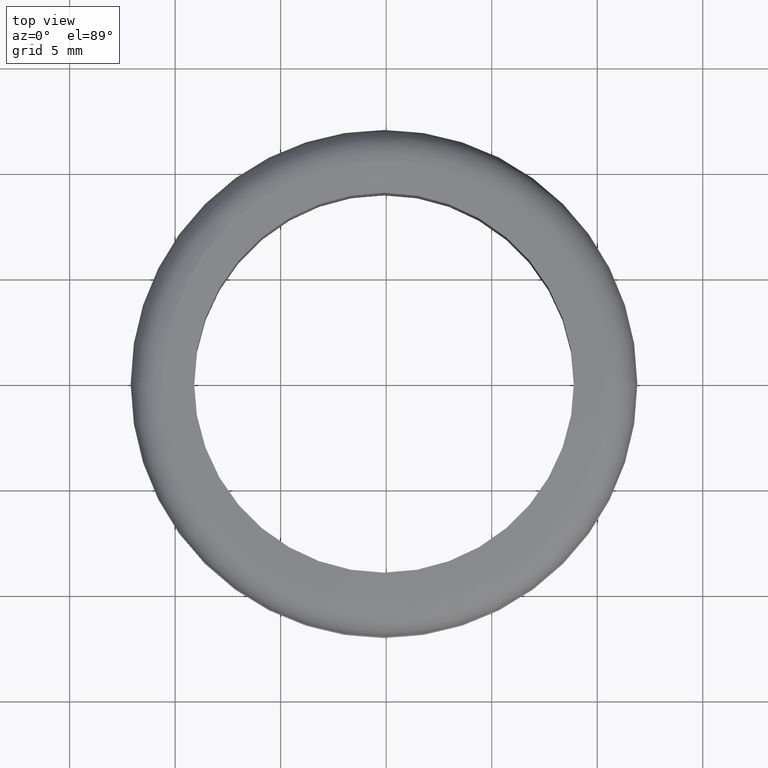
[diagram: clean part render]
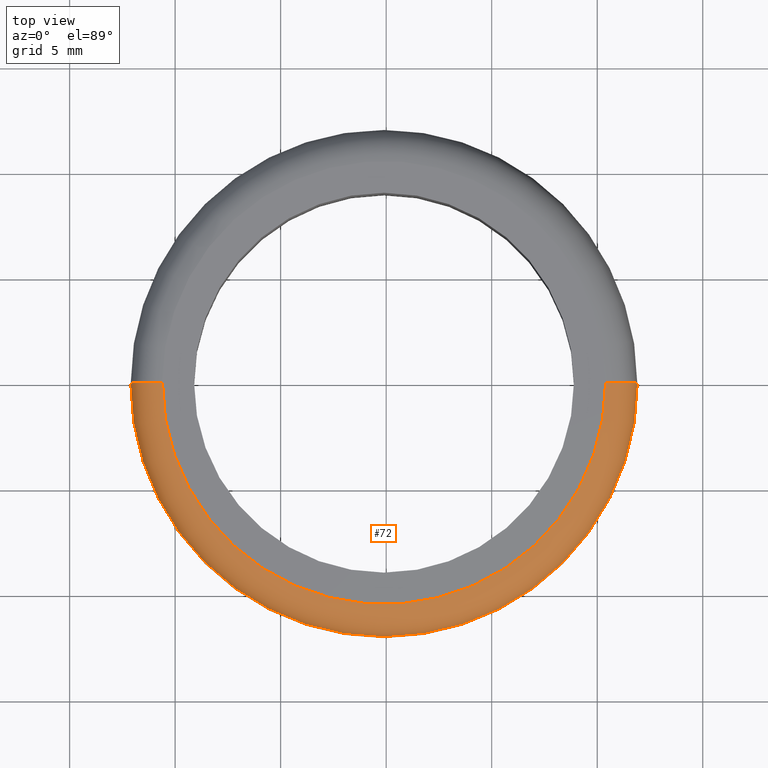
[diagram: same view with one face highlighted and labeled with its STEP entity id]
A machine part, top view. The second image highlights one B-rep face of the part: STEP entity #72.
In plain terms, the highlighted toroidal blend (fillet) surface has major radius 10.5 mm and minor (blend) radius 1.5 mm.
Its self-contained STEP definition (entity closure, byte-faithful):
#9 = DIRECTION ( 'NONE',  ( 0.0000000000000000000, 0.0000000000000000000, -1.000000000000000000 ) ) ;
#10 = CARTESIAN_POINT ( 'NONE',  ( 104.8968217177672100, 0.0000000000000000000, 147.3594493936724100 ) ) ;
#14 = DIRECTION ( 'NONE',  ( -1.000000000000000000, 0.0000000000000000000, 0.0000000000000000000 ) ) ;
#16 = CIRCLE ( 'NONE', #448, 12.00000000000990500 ) ;
#18 = VERTEX_POINT ( 'NONE', #193 ) ;
#23 = CARTESIAN_POINT ( 'NONE',  ( 115.3968217177771200, 1.285879139105933300E-015, 147.3594493936724100 ) ) ;
#30 = ORIENTED_EDGE ( 'NONE', *, *, #281, .F. ) ;
#36 = ORIENTED_EDGE ( 'NONE', *, *, #184, .T. ) ;
#51 = DIRECTION ( 'NONE',  ( 0.0000000000000000000, 0.0000000000000000000, -1.000000000000000000 ) ) ;
#56 = DIRECTION ( 'NONE',  ( -1.000000000000000000, -1.224646799147352000E-016, 0.0000000000000000000 ) ) ;
#58 = CARTESIAN_POINT ( 'NONE',  ( 104.8968217177672100, 0.0000000000000000000, 147.3594493936724100 ) ) ;
#71 = CARTESIAN_POINT ( 'NONE',  ( 92.89682171775730500, 0.0000000000000000000, 147.3594493936724100 ) ) ;
#72 = ADVANCED_FACE ( 'NONE', ( #382 ), #464, .T. ) ;
#93 = CARTESIAN_POINT ( 'NONE',  ( 104.8968217177672100, 0.0000000000000000000, 148.8594493936722100 ) ) ;
#97 = CARTESIAN_POINT ( 'NONE',  ( 94.39682171775720600, 0.0000000000000000000, 148.8594493936722100 ) ) ;
#106 = VERTEX_POINT ( 'NONE', #338 ) ;
#125 = DIRECTION ( 'NONE',  ( -1.000000000000000000, 0.0000000000000000000, 0.0000000000000000000 ) ) ;
#129 = DIRECTION ( 'NONE',  ( -0.0000000000000000000, -1.000000000000000000, -0.0000000000000000000 ) ) ;
#142 = EDGE_CURVE ( 'NONE', #106, #18, #244, .T. ) ;
#184 = EDGE_CURVE ( 'NONE', #296, #411, #233, .T. ) ;
#193 = CARTESIAN_POINT ( 'NONE',  ( 116.8968217177771200, 1.469576158978036200E-015, 147.3594493936724100 ) ) ;
#207 = AXIS2_PLACEMENT_3D ( 'NONE', #58, #51, #219 ) ;
#219 = DIRECTION ( 'NONE',  ( -1.000000000000000000, 0.0000000000000000000, 0.0000000000000000000 ) ) ;
#224 = DIRECTION ( 'NONE',  ( -1.224646799147353200E-016, 1.000000000000000000, 0.0000000000000000000 ) ) ;
#233 = CIRCLE ( 'NONE', #439, 1.500000000000001300 ) ;
#244 = CIRCLE ( 'NONE', #283, 1.500000000000001300 ) ;
#249 = DIRECTION ( 'NONE',  ( 0.0000000000000000000, 0.0000000000000000000, -1.000000000000000000 ) ) ;
#254 = EDGE_LOOP ( 'NONE', ( #335, #414, #36, #30 ) ) ;
#256 = EDGE_CURVE ( 'NONE', #106, #296, #413, .T. ) ;
#281 = EDGE_CURVE ( 'NONE', #18, #411, #16, .T. ) ;
#283 = AXIS2_PLACEMENT_3D ( 'NONE', #23, #224, #56 ) ;
#296 = VERTEX_POINT ( 'NONE', #97 ) ;
#307 = DIRECTION ( 'NONE',  ( 0.0000000000000000000, 0.0000000000000000000, -1.000000000000000000 ) ) ;
#335 = ORIENTED_EDGE ( 'NONE', *, *, #142, .F. ) ;
#338 = CARTESIAN_POINT ( 'NONE',  ( 115.3968217177772100, 1.377727649041991000E-015, 148.8594493936722100 ) ) ;
#382 = FACE_OUTER_BOUND ( 'NONE', #254, .T. ) ;
#401 = AXIS2_PLACEMENT_3D ( 'NONE', #93, #307, #14 ) ;
#411 = VERTEX_POINT ( 'NONE', #71 ) ;
#413 = CIRCLE ( 'NONE', #401, 10.50000000001000100 ) ;
#414 = ORIENTED_EDGE ( 'NONE', *, *, #256, .T. ) ;
#439 = AXIS2_PLACEMENT_3D ( 'NONE', #453, #129, #249 ) ;
#448 = AXIS2_PLACEMENT_3D ( 'NONE', #10, #9, #125 ) ;
#453 = CARTESIAN_POINT ( 'NONE',  ( 94.39682171775730500, 0.0000000000000000000, 147.3594493936724100 ) ) ;
#464 = TOROIDAL_SURFACE ( 'NONE', #207, 10.50000000000990100, 1.500000000000000000 ) ;